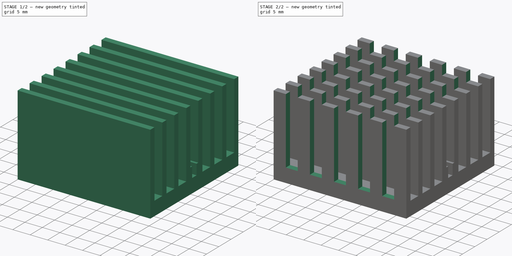
[diagram: build sequence overview — one tinted view per stage of 2, left to right]
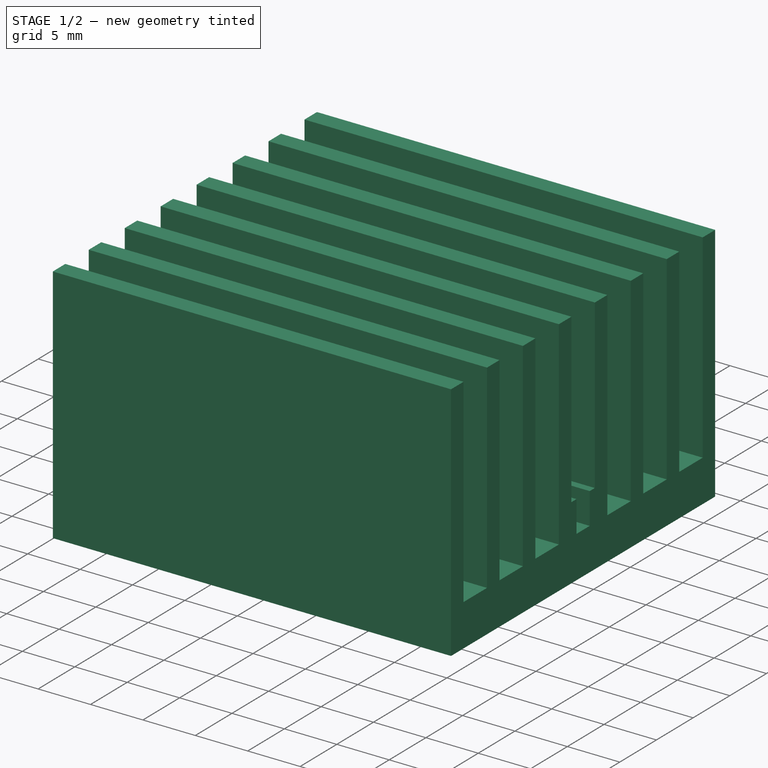
[diagram: stage 1 of 2 — iso view after this stage's code; geometry added in this stage tinted green]
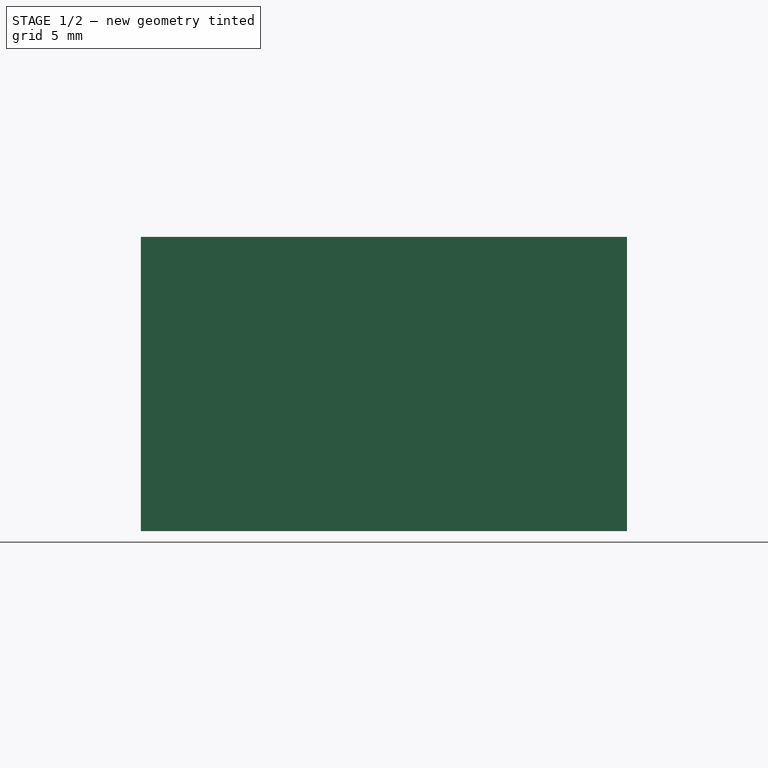
[diagram: stage 1 of 2 — front view after this stage's code; geometry added in this stage tinted green]
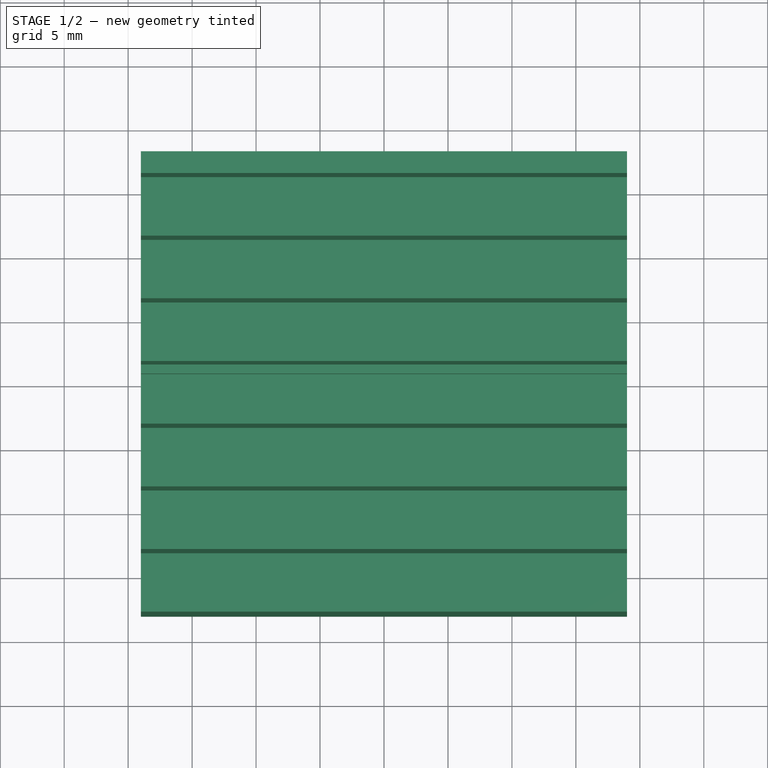
[diagram: stage 1 of 2 — top view after this stage's code; geometry added in this stage tinted green]
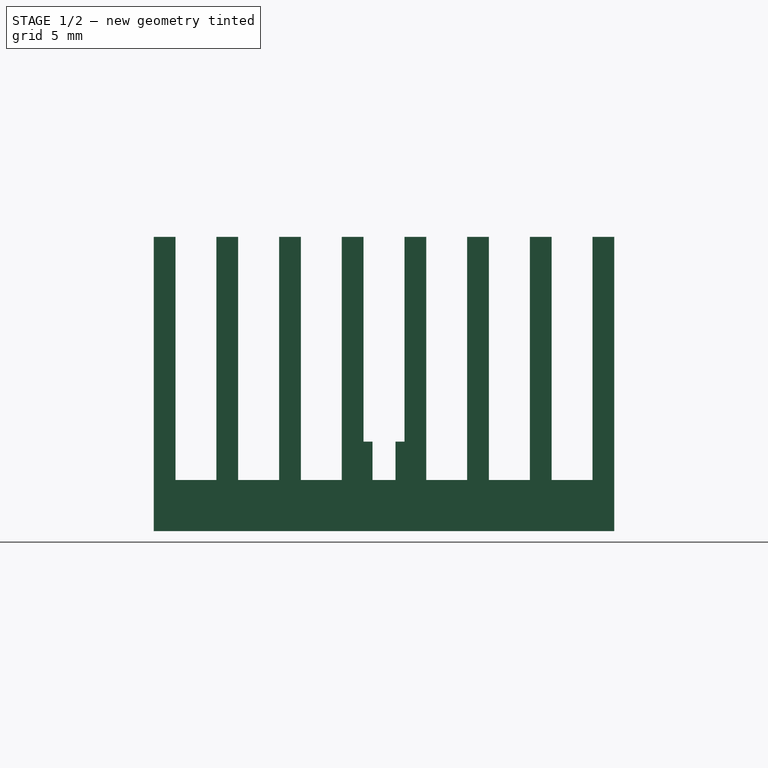
[diagram: stage 1 of 2 — right view after this stage's code; geometry added in this stage tinted green]
FCSTD DOCUMENT  (FreeCAD 0.17R13509 (Git))
Label: Heatsink 23x36x38
License: CreativeCommons Attribution-ShareAlike
LicenseURL: http://creativecommons.org/licenses/by-sa/4.0/
objects: Sketcher::SketchObject×3, PartDesign::Pocket×2, PartDesign::Pad×1, PartDesign::Body×1, App::Part×1
note: 10 computed .brp shape members not serialized (recipe doc carries the construction recipe); baked Part::Feature solids carry a one-line shape summary decoded from their .brp

FEATURE [Sketcher::SketchObject] Sketch
  MapMode = 5
  Support = -> [XY_Plane001]
  sketch-geometry (6):
    g0: LineSegment StartX=-19 StartY=18 StartZ=0 EndX=19 EndY=18 EndZ=0
    g1: LineSegment StartX=19 StartY=18 StartZ=0 EndX=19 EndY=-18 EndZ=0
    g2: LineSegment StartX=19 StartY=-18 StartZ=0 EndX=-19 EndY=-18 EndZ=0
    g3: LineSegment StartX=-19 StartY=-18 StartZ=0 EndX=-19 EndY=18 EndZ=0
    g4: LineSegment [constr] StartX=-19 StartY=18 StartZ=0 EndX=0 EndY=0 EndZ=0
    g5: LineSegment [constr] StartX=0 StartY=0 StartZ=0 EndX=19 EndY=-18 EndZ=0
  constraints (16):
    c: Coincident(g0,g1)
    c: Coincident(g1,g2)
    c: Coincident(g2,g3)
    c: Coincident(g3,g0)
    c: Horizontal(g0)
    c: Horizontal(g2)
    c: Vertical(g1)
    c: Vertical(g3)
    c: Coincident(g0,g4)
    c: Coincident(g4,g-1)
    c: Coincident(g4,g5)
    c: Coincident(g5,g1)
    c: Parallel(g5,g4)
    c: Equal(g4,g5)
    c: DistanceX(g0,g0) = 38
    c: DistanceY(g3,g3) = 36
FEATURE [PartDesign::Pad] Pad
  Length = 23
  Length2 = 100
  Profile = -> Sketch
  Refine = true
  Type = 0
FEATURE [Sketcher::SketchObject] Sketch001
  ExternalGeometry = -> [Pad]
  MapMode = 5
  Placement = pos=(19,0,0) rot=(0.57735,0.57735,0.57735;2.0944rad)
  Support = -> [Pad]
  sketch-geometry (44):
    g0: LineSegment StartX=-18 StartY=4 StartZ=0 EndX=-21 EndY=4 EndZ=0
    g1: LineSegment StartX=-21 StartY=4 StartZ=0 EndX=-21 EndY=26 EndZ=0
    g2: LineSegment StartX=-21 StartY=26 StartZ=0 EndX=21 EndY=26 EndZ=0
    g3: LineSegment StartX=21 StartY=26 StartZ=0 EndX=21 EndY=4 EndZ=0
    g4: LineSegment StartX=21 StartY=4 StartZ=0 EndX=18 EndY=4 EndZ=0
    g5: LineSegment StartX=18 StartY=4 StartZ=0 EndX=18 EndY=23 EndZ=0
    g6: LineSegment StartX=18 StartY=23 StartZ=0 EndX=16.3 EndY=23 EndZ=0
    g7: LineSegment StartX=16.3 StartY=23 StartZ=0 EndX=16.3 EndY=4 EndZ=0
    g8: LineSegment StartX=16.3 StartY=4 StartZ=0 EndX=13.1 EndY=4 EndZ=0
    g9: LineSegment StartX=13.1 StartY=4 StartZ=0 EndX=13.1 EndY=23 EndZ=0
    g10: LineSegment StartX=13.1 StartY=23 StartZ=0 EndX=11.4 EndY=23 EndZ=0
    g11: LineSegment StartX=11.4 StartY=23 StartZ=0 EndX=11.4 EndY=4 EndZ=0
    g12: LineSegment StartX=11.4 StartY=4 StartZ=0 EndX=8.2 EndY=4 EndZ=0
    g13: LineSegment StartX=8.2 StartY=4 StartZ=0 EndX=8.2 EndY=23 EndZ=0
    g14: LineSegment StartX=8.2 StartY=23 StartZ=0 EndX=6.5 EndY=23 EndZ=0
    g15: LineSegment StartX=6.5 StartY=23 StartZ=0 EndX=6.5 EndY=4 EndZ=0
    g16: LineSegment StartX=6.5 StartY=4 StartZ=0 EndX=3.3 EndY=4 EndZ=0
    g17: LineSegment StartX=3.3 StartY=4 StartZ=0 EndX=3.3 EndY=23 EndZ=0
    g18: LineSegment StartX=3.3 StartY=23 StartZ=0 EndX=1.6 EndY=23 EndZ=0
    g19: LineSegment StartX=1.6 StartY=23 StartZ=0 EndX=1.6 EndY=7 EndZ=0
    g20: LineSegment StartX=0.9 StartY=4 StartZ=0 EndX=-0.9 EndY=4 EndZ=0
    g21: LineSegment StartX=-1.6 StartY=7 StartZ=0 EndX=-1.6 EndY=23 EndZ=0
    g22: LineSegment StartX=-1.6 StartY=23 StartZ=0 EndX=-3.3 EndY=23 EndZ=0
    g23: LineSegment StartX=-3.3 StartY=23 StartZ=0 EndX=-3.3 EndY=4 EndZ=0
    g24: LineSegment StartX=-3.3 StartY=4 StartZ=0 EndX=-6.5 EndY=4 EndZ=0
    g25: LineSegment StartX=-6.5 StartY=4 StartZ=0 EndX=-6.5 EndY=23 EndZ=0
    g26: LineSegment StartX=-6.5 StartY=23 StartZ=0 EndX=-8.2 EndY=23 EndZ=0
    g27: LineSegment StartX=-8.2 StartY=23 StartZ=0 EndX=-8.2 EndY=4 EndZ=0
    g28: LineSegment StartX=-8.2 StartY=4 StartZ=0 EndX=-11.4 EndY=4 EndZ=0
    g29: LineSegment StartX=-11.4 StartY=4 StartZ=0 EndX=-11.4 EndY=23 EndZ=0
    g30: LineSegment StartX=-11.4 StartY=23 StartZ=0 EndX=-13.1 EndY=23 EndZ=0
    g31: LineSegment StartX=-13.1 StartY=23 StartZ=0 EndX=-13.1 EndY=4 EndZ=0
    g32: LineSegment StartX=-13.1 StartY=4 StartZ=0 EndX=-16.3 EndY=4 EndZ=0
    g33: LineSegment StartX=-16.3 StartY=4 StartZ=0 EndX=-16.3 EndY=23 EndZ=0
    g34: LineSegment StartX=-18 StartY=23 StartZ=0 EndX=-18 EndY=4 EndZ=0
    g35: LineSegment StartX=-16.3 StartY=23 StartZ=0 EndX=-18 EndY=23 EndZ=0
    g36: LineSegment [constr] StartX=18 StartY=23 StartZ=0 EndX=18 EndY=26 EndZ=0
    g37: LineSegment [constr] StartX=21 StartY=23 StartZ=0 EndX=18 EndY=23 EndZ=0
    g38: LineSegment [constr] StartX=-18 StartY=23 StartZ=0 EndX=-21 EndY=23 EndZ=0
    g39: LineSegment StartX=-1.6 StartY=7 StartZ=0 EndX=-0.9 EndY=7 EndZ=0
    g40: LineSegment StartX=-0.9 StartY=7 StartZ=0 EndX=-0.9 EndY=4 EndZ=0
    g41: LineSegment StartX=1.6 StartY=7 StartZ=0 EndX=0.9 EndY=7 EndZ=0
    g42: LineSegment StartX=0.9 StartY=4 StartZ=0 EndX=0.9 EndY=7 EndZ=0
    g43: LineSegment [constr] StartX=-1.6 StartY=23 StartZ=0 EndX=1.6 EndY=23 EndZ=0
  constraints (129):
    c: PointOnObject(g0,g-3)
    c: Horizontal(g0)
    c: Coincident(g0,g1)
    c: Vertical(g1)
    c: Coincident(g1,g2)
    c: Horizontal(g2)
    c: Coincident(g2,g3)
    c: Vertical(g3)
    c: Coincident(g3,g4)
    c: PointOnObject(g4,g-4)
    c: Horizontal(g4)
    c: Coincident(g4,g5)
    c: Coincident(g5,g6)
    c: Coincident(g6,g7)
    c: Vertical(g7)
    c: Coincident(g7,g8)
    c: Horizontal(g8)
    c: Coincident(g8,g9)
    c: Vertical(g9)
    c: Coincident(g9,g10)
    c: Coincident(g10,g11)
    c: Vertical(g11)
    c: Coincident(g11,g12)
    c: Horizontal(g12)
    c: Coincident(g12,g13)
    c: Vertical(g13)
    c: Coincident(g13,g14)
    c: Coincident(g14,g15)
    c: Vertical(g15)
    c: Coincident(g15,g16)
    c: Horizontal(g16)
    c: Coincident(g16,g17)
    c: Vertical(g17)
    c: Coincident(g17,g18)
    c: Horizontal(g18)
    c: Coincident(g18,g19)
    c: Vertical(g19)
    c: Horizontal(g20)
    c: Vertical(g21)
    c: Coincident(g21,g22)
    c: Horizontal(g22)
    c: Coincident(g22,g23)
    c: Vertical(g23)
    c: Coincident(g23,g24)
    c: Horizontal(g24)
    c: Coincident(g24,g25)
    c: Vertical(g25)
    c: Coincident(g25,g26)
    c: Coincident(g26,g27)
    c: Vertical(g27)
    c: Coincident(g27,g28)
    c: Coincident(g28,g29)
    c: Vertical(g29)
    c: Coincident(g29,g30)
    c: Coincident(g30,g31)
    c: Vertical(g31)
    c: Coincident(g31,g32)
    c: Coincident(g32,g33)
    c: Vertical(g33)
    c: Coincident(g34,g0)
    c: Horizontal(g14)
    c: Horizontal(g32)
    c: Horizontal(g28)
    c: Equal(g34,g33)
    c: Equal(g33,g29)
    c: Equal(g29,g25)
    c: Equal(g27,g23)
    c: Equal(g15,g11)
    c: Equal(g11,g7)
    c: Equal(g24,g28)
    c: Equal(g28,g32)
    c: Coincident(g5,g-4)
    c: Equal(g16,g12)
    c: Equal(g12,g8)
    c: Coincident(g34,g-3)
    c: Horizontal(g30)
    c: Horizontal(g26)
    c: Coincident(g33,g35)
    c: Coincident(g35,g34)
    c: Horizontal(g35)
    c: Horizontal(g30,g34)
    c: Horizontal(g34,g26)
    c: Horizontal(g22,g18)
    c: Horizontal(g18,g14)
    c: Horizontal(g14,g10)
    c: Horizontal(g10,g6)
    c: Horizontal(g10)
    c: Equal(g35,g30)
    c: Equal(g30,g26)
    c: Equal(g26,g22)
    c: DistanceX(g35,g35) = 1.7
    c: Equal(g14,g10)
    c: Equal(g10,g6)
    c: Equal(g6,g18)
    c: Equal(g18,g22)
    c: DistanceY(g5,g2) = 3
    c: Coincident(g5,g36)
    c: Vertical(g36)
    c: PointOnObject(g37,g3)
    c: Coincident(g37,g36)
    c: Horizontal(g37)
    c: Equal(g37,g36)
    c: PointOnObject(g36,g2)
    c: Coincident(g34,g38)
    c: Horizontal(g38)
    c: Equal(g38,g37)
    c: PointOnObject(g38,g1)
    c: DistanceY(g5,g5) = 19
    c: Horizontal(g4,g7)
    c: Horizontal(g39)
    c: Coincident(g40,g39)
    c: Vertical(g40)
    c: Horizontal(g41)
    c: Coincident(g42,g41)
    c: Vertical(g42)
    c: Equal(g42,g40)
    c: Equal(g39,g41)
    c: Coincident(g20,g42)
    c: Coincident(g20,g40)
    c: Coincident(g21,g39)
    c: Coincident(g19,g41)
    c: Equal(g24,g16)
    c: Coincident(g21,g43)
    c: Coincident(g43,g18)
    c: Equal(g43,g24)
    c: Horizontal(g20,g24)
    c: Horizontal(g20,g16)
    c: DistanceX(g20,g20) = 1.8
    c: DistanceY(g42,g42) = 3
FEATURE [PartDesign::Pocket] Pocket
  BaseFeature = -> Pad
  Length = 5
  Length2 = 100
  Profile = -> Sketch001
  Refine = true
  Type = 1
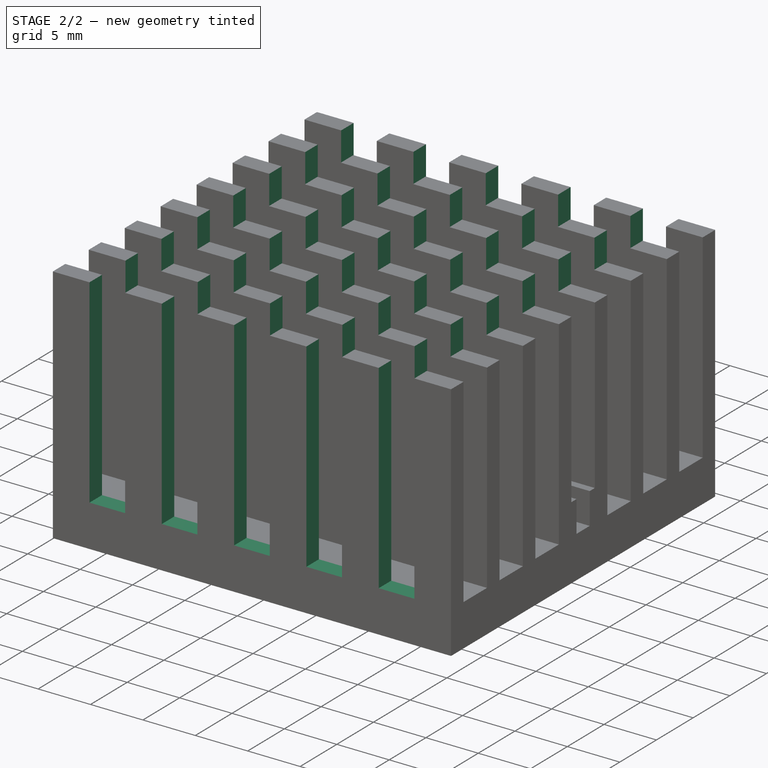
[diagram: stage 2 of 2 — iso view after this stage's code; geometry added in this stage tinted green]
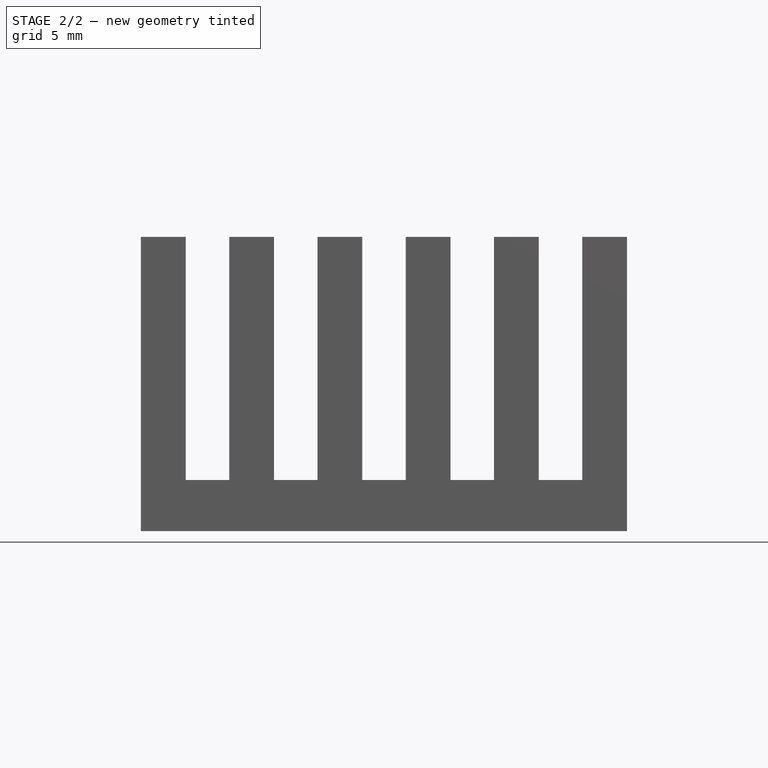
[diagram: stage 2 of 2 — front view after this stage's code; geometry added in this stage tinted green]
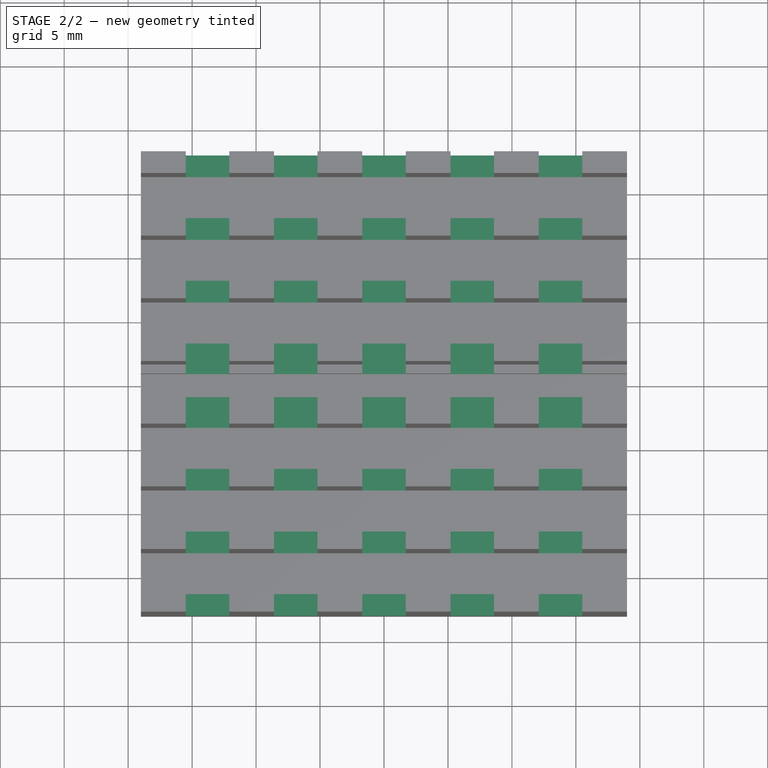
[diagram: stage 2 of 2 — top view after this stage's code; geometry added in this stage tinted green]
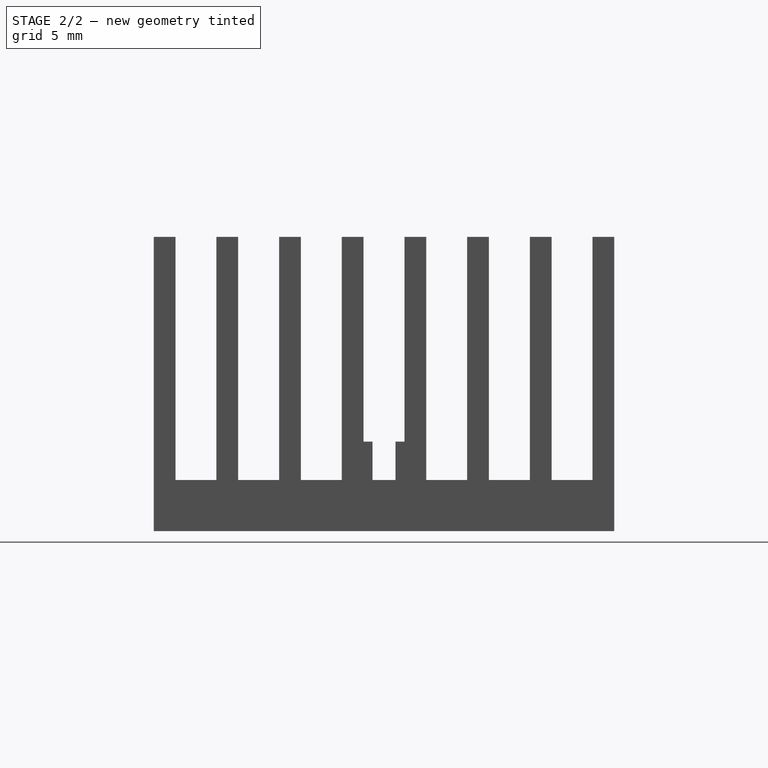
[diagram: stage 2 of 2 — right view after this stage's code; geometry added in this stage tinted green]
FEATURE [Sketcher::SketchObject] Sketch002
  ExternalGeometry = -> [Pocket]
  MapMode = 5
  Placement = pos=(0,0,0) rot=(1,0,0;1.5708rad)
  Support = -> [XZ_Plane001]
  sketch-geometry (29):
    g0: LineSegment StartX=-19 StartY=23 StartZ=0 EndX=-19 EndY=4 EndZ=0
    g1: LineSegment StartX=-19 StartY=4 StartZ=0 EndX=-22.4 EndY=4 EndZ=0
    g2: LineSegment StartX=-22.4 StartY=4 StartZ=0 EndX=-22.4 EndY=26.4 EndZ=0
    g3: LineSegment StartX=-22.4 StartY=26.4 StartZ=0 EndX=22.4 EndY=26.4 EndZ=0
    g4: LineSegment StartX=22.4 StartY=26.4 StartZ=0 EndX=22.4 EndY=4 EndZ=0
    g5: LineSegment StartX=22.4 StartY=4 StartZ=0 EndX=19 EndY=4 EndZ=0
    g6: LineSegment StartX=19 StartY=4 StartZ=0 EndX=19 EndY=23 EndZ=0
    g7: LineSegment StartX=19 StartY=23 StartZ=0 EndX=15.5 EndY=23 EndZ=0
    g8: LineSegment StartX=15.5 StartY=23 StartZ=0 EndX=15.5 EndY=4 EndZ=0
    g9: LineSegment StartX=15.5 StartY=4 StartZ=0 EndX=12.1 EndY=4 EndZ=0
    g10: LineSegment StartX=12.1 StartY=4 StartZ=0 EndX=12.1 EndY=23 EndZ=0
    g11: LineSegment StartX=12.1 StartY=23 StartZ=0 EndX=8.6 EndY=23 EndZ=0
    g12: LineSegment StartX=8.6 StartY=23 StartZ=0 EndX=8.6 EndY=4 EndZ=0
    g13: LineSegment StartX=8.6 StartY=4 StartZ=0 EndX=5.2 EndY=4 EndZ=0
    g14: LineSegment StartX=5.2 StartY=4 StartZ=0 EndX=5.2 EndY=23 EndZ=0
    g15: LineSegment StartX=5.2 StartY=23 StartZ=0 EndX=1.7 EndY=23 EndZ=0
    g16: LineSegment StartX=1.7 StartY=23 StartZ=0 EndX=1.7 EndY=4 EndZ=0
    g17: LineSegment StartX=1.7 StartY=4 StartZ=0 EndX=-1.7 EndY=4 EndZ=0
    g18: LineSegment StartX=-1.7 StartY=4 StartZ=0 EndX=-1.7 EndY=23 EndZ=0
    g19: LineSegment StartX=-1.7 StartY=23 StartZ=0 EndX=-5.2 EndY=23 EndZ=0
    g20: LineSegment StartX=-5.2 StartY=23 StartZ=0 EndX=-5.2 EndY=4 EndZ=0
    g21: LineSegment StartX=-5.2 StartY=4 StartZ=0 EndX=-8.6 EndY=4 EndZ=0
    g22: LineSegment StartX=-8.6 StartY=4 StartZ=0 EndX=-8.6 EndY=23 EndZ=0
    g23: LineSegment StartX=-8.6 StartY=23 StartZ=0 EndX=-12.1 EndY=23 EndZ=0
    g24: LineSegment StartX=-12.1 StartY=23 StartZ=0 EndX=-12.1 EndY=4 EndZ=0
    g25: LineSegment StartX=-12.1 StartY=4 StartZ=0 EndX=-15.5 EndY=4 EndZ=0
    g26: LineSegment StartX=-15.5 StartY=4 StartZ=0 EndX=-15.5 EndY=23 EndZ=0
    g27: LineSegment StartX=-15.5 StartY=23 StartZ=0 EndX=-19 EndY=23 EndZ=0
    g28: LineSegment [constr] StartX=19 StartY=23 StartZ=0 EndX=19 EndY=26.4 EndZ=0
  constraints (85):
    c: Coincident(g0,g-3)
    c: Vertical(g0)
    c: Coincident(g0,g1)
    c: Horizontal(g1)
    c: Coincident(g1,g2)
    c: Vertical(g2)
    c: Coincident(g2,g3)
    c: Horizontal(g3)
    c: Coincident(g3,g4)
    c: Vertical(g4)
    c: Coincident(g4,g5)
    c: Horizontal(g5)
    c: Coincident(g5,g6)
    c: Coincident(g6,g-4)
    c: Vertical(g6)
    c: Coincident(g6,g7)
    c: Coincident(g7,g8)
    c: Vertical(g8)
    c: Coincident(g8,g9)
    c: Horizontal(g9)
    c: Coincident(g9,g10)
    c: Vertical(g10)
    c: Coincident(g10,g11)
    c: Horizontal(g11)
    c: Coincident(g11,g12)
    c: Vertical(g12)
    c: Coincident(g12,g13)
    c: Horizontal(g13)
    c: Coincident(g13,g14)
    c: Vertical(g14)
    c: Coincident(g14,g15)
    c: Horizontal(g15)
    c: Coincident(g15,g16)
    c: Vertical(g16)
    c: Coincident(g16,g17)
    c: Coincident(g17,g18)
    c: Vertical(g18)
    c: Coincident(g18,g19)
    c: Horizontal(g19)
    c: Coincident(g19,g20)
    c: Vertical(g20)
    c: Coincident(g20,g21)
    c: Horizontal(g21)
    c: Coincident(g21,g22)
    c: Vertical(g22)
    c: Coincident(g22,g23)
    c: Horizontal(g23)
    c: Coincident(g23,g24)
    c: Vertical(g24)
    c: Coincident(g24,g25)
    c: Horizontal(g25)
    c: Coincident(g25,g26)
    c: Vertical(g26)
    c: Coincident(g26,g27)
    c: Coincident(g27,g0)
    c: Horizontal(g27)
    c: Horizontal(g17)
    c: Horizontal(g0,g25)
    c: Horizontal(g25,g21)
    c: Horizontal(g21,g17)
    c: Horizontal(g17,g13)
    c: Horizontal(g13,g9)
    c: Horizontal(g9,g5)
    c: Equal(g0,g24)
    c: Equal(g24,g20)
    c: Equal(g20,g16)
    c: Equal(g16,g12)
    c: Equal(g12,g8)
    c: Equal(g7,g11)
    c: Equal(g11,g15)
    c: Equal(g15,g19)
    c: Equal(g19,g23)
    c: Equal(g23,g27)
    c: DistanceX(g27,g27) = 3.5
    c: Equal(g25,g21)
    c: Equal(g21,g17)
    c: Equal(g17,g13)
    c: Equal(g13,g9)
    c: Equal(g9,g5)
    c: Equal(g5,g1)
    c: PointOnObject(g28,g3)
    c: Vertical(g28)
    c: Coincident(g28,g6)
    c: Equal(g5,g28)
    c: DistanceY(g0,g0) = 19
FEATURE [PartDesign::Pocket] Pocket001
  BaseFeature = -> Pocket
  Length = 5
  Length2 = 100
  Midplane = true
  Profile = -> Sketch002
  Refine = true
  Type = 1
FEATURE [PartDesign::Body] Body
  Group = -> [Sketch,Pad,Sketch001,Pocket,Sketch002,Pocket001]
  Origin = -> Origin001
  Tip = -> Pocket001
FEATURE [App::Part] Part
  Group = -> [Body]
  License = CC BY 3.0
  LicenseURL = http://creativecommons.org/licenses/by/3.0/
  Origin = -> Origin
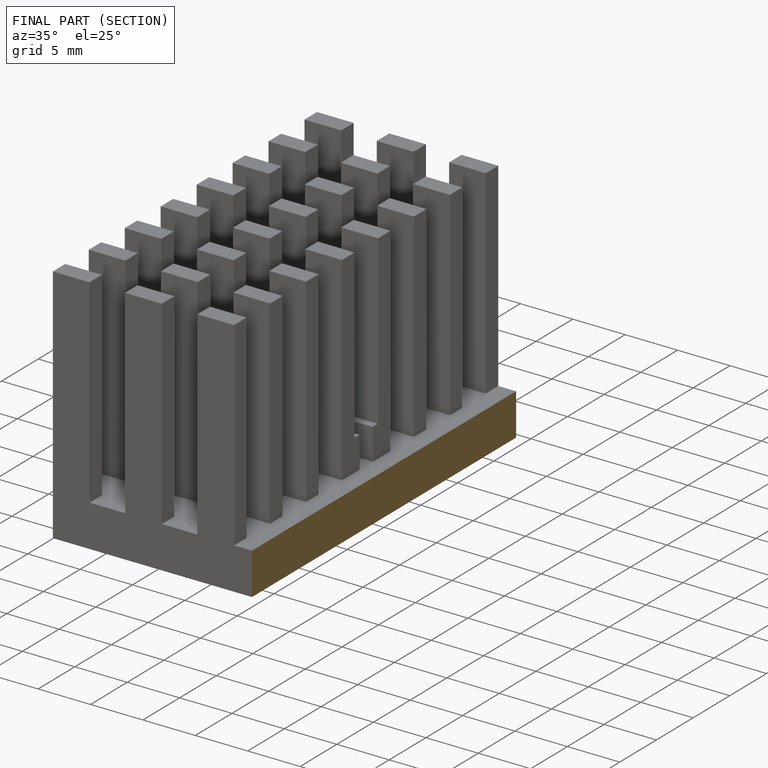
[diagram: finished part — half-section view (interior)]
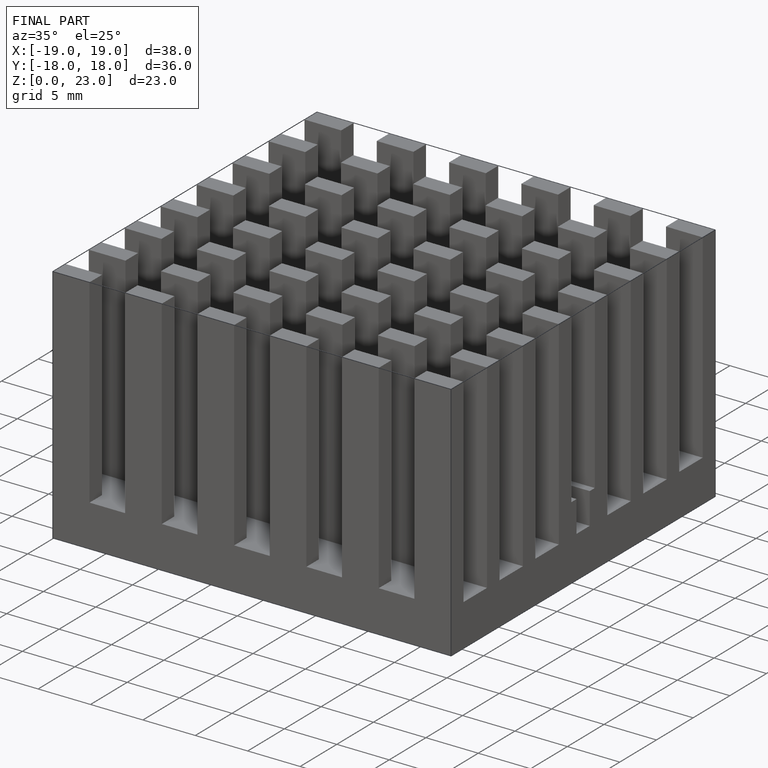
[diagram: finished part — iso view with bounding-box wireframe]
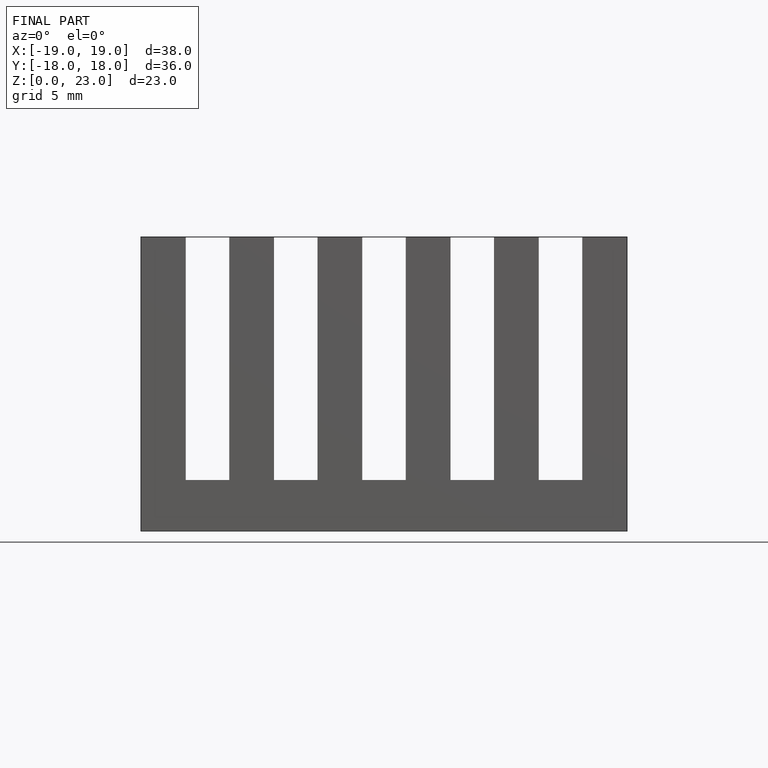
[diagram: finished part — front view with bounding-box wireframe]
